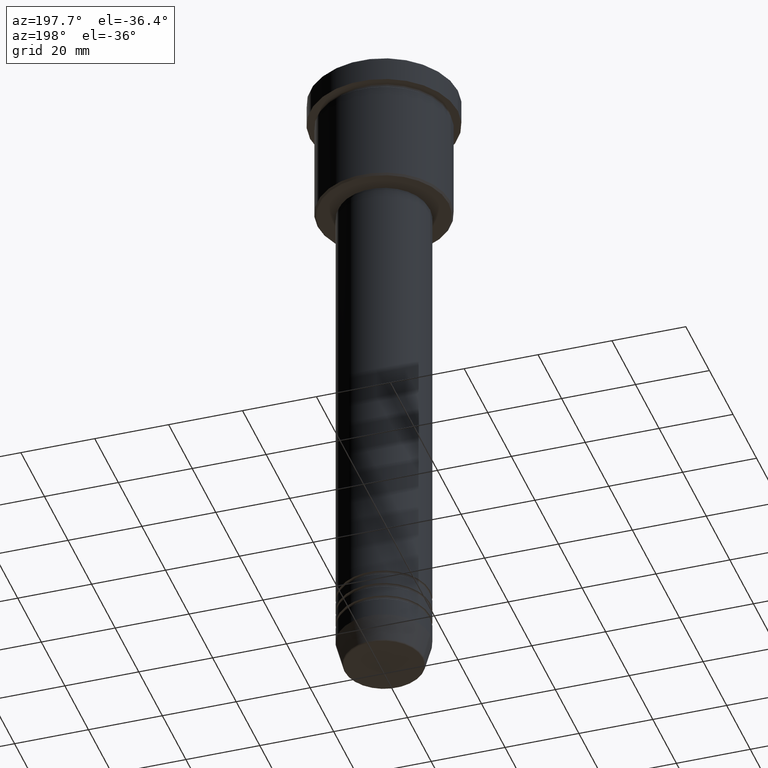
[diagram: clean part render]
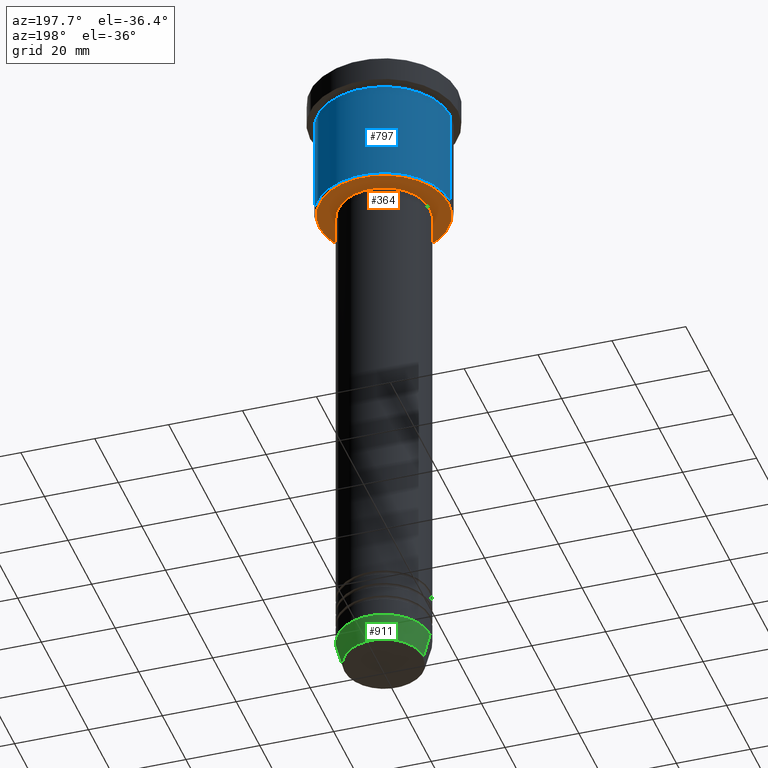
[diagram: same view with three faces highlighted in distinct colors, each labeled with its STEP entity id]
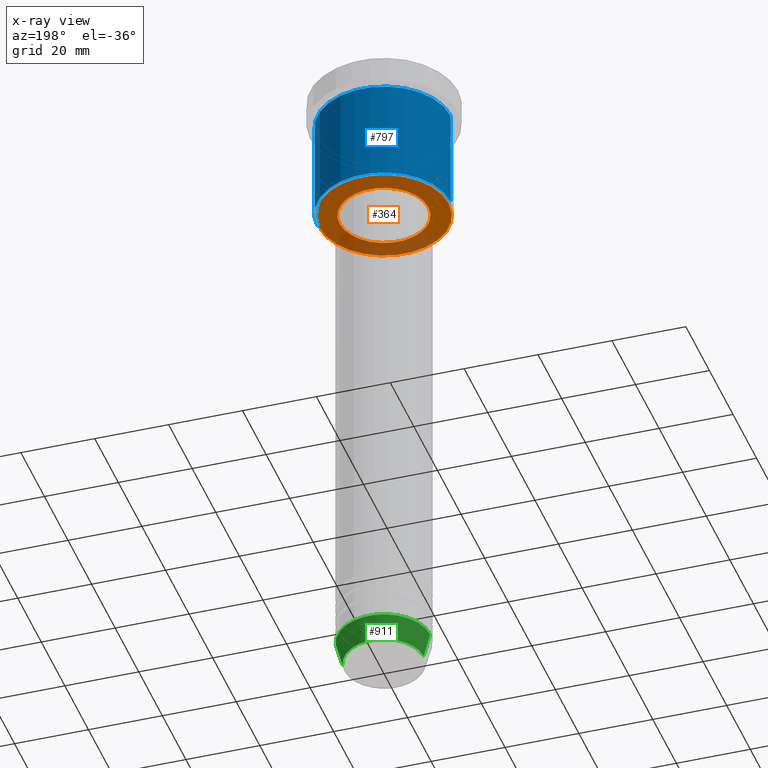
[diagram: x-ray of the same camera — body ghosted, the three highlighted faces saturated]
A machine part, auxiliary view with three faces highlighted in distinct colors.
The next image is the same camera in x-ray (body ghosted, the three faces saturated) — at least one of them is partly hidden behind the body in this view.
Their STEP definitions:

[orange] entity #364 — the highlighted planar face has unit normal (0, 0, -1).
#44 = VERTEX_POINT ( 'NONE', #384 ) ;
#50 = DIRECTION ( 'NONE',  ( -1.000000000000000000, 0.000000000000000000, 0.000000000000000000 ) ) ;
#71 = VERTEX_POINT ( 'NONE', #151 ) ;
#107 = AXIS2_PLACEMENT_3D ( 'NONE', #136, #1154, #775 ) ;
#119 = EDGE_CURVE ( 'NONE', #467, #71, #770, .T. ) ;
#136 = CARTESIAN_POINT ( 'NONE',  ( 0.000000000000000000, 18.00000000000000000, -36.00000000000000711 ) ) ;
#140 = DIRECTION ( 'NONE',  ( -0.000000000000000000, -0.000000000000000000, 1.000000000000000000 ) ) ;
#151 = CARTESIAN_POINT ( 'NONE',  ( 17.50000000000001421, 0.000000000000000000, -36.00000000000000711 ) ) ;
#215 = DIRECTION ( 'NONE',  ( 0.000000000000000000, 0.000000000000000000, -1.000000000000000000 ) ) ;
#227 = FACE_OUTER_BOUND ( 'NONE', #429, .T. ) ;
#238 = CARTESIAN_POINT ( 'NONE',  ( 0.000000000000000000, 0.000000000000000000, -36.00000000000001421 ) ) ;
#241 = AXIS2_PLACEMENT_3D ( 'NONE', #248, #420, #50 ) ;
#248 = CARTESIAN_POINT ( 'NONE',  ( 0.000000000000000000, 0.000000000000000000, -36.00000000000000711 ) ) ;
#249 = EDGE_LOOP ( 'NONE', ( #528, #778 ) ) ;
#291 = ORIENTED_EDGE ( 'NONE', *, *, #119, .T. ) ;
#309 = EDGE_CURVE ( 'NONE', #44, #716, #671, .T. ) ;
#331 = PLANE ( 'NONE',  #107 ) ;
#364 = ADVANCED_FACE ( 'NONE', ( #227, #881 ), #331, .T. ) ;
#384 = CARTESIAN_POINT ( 'NONE',  ( -12.00000000000000000, 1.469576158976823947E-15, -36.00000000000001421 ) ) ;
#400 = EDGE_CURVE ( 'NONE', #716, #44, #458, .T. ) ;
#406 = DIRECTION ( 'NONE',  ( -1.000000000000000000, 0.000000000000000000, 0.000000000000000000 ) ) ;
#420 = DIRECTION ( 'NONE',  ( 0.000000000000000000, 0.000000000000000000, -1.000000000000000000 ) ) ;
#429 = EDGE_LOOP ( 'NONE', ( #535, #291 ) ) ;
#458 = CIRCLE ( 'NONE', #731, 12.00000000000000000 ) ;
#467 = VERTEX_POINT ( 'NONE', #893 ) ;
#528 = ORIENTED_EDGE ( 'NONE', *, *, #400, .T. ) ;
#535 = ORIENTED_EDGE ( 'NONE', *, *, #1133, .T. ) ;
#611 = DIRECTION ( 'NONE',  ( 1.000000000000000000, 0.000000000000000000, 0.000000000000000000 ) ) ;
#616 = DIRECTION ( 'NONE',  ( -0.000000000000000000, -0.000000000000000000, 1.000000000000000000 ) ) ;
#655 = AXIS2_PLACEMENT_3D ( 'NONE', #779, #616, #885 ) ;
#671 = CIRCLE ( 'NONE', #655, 12.00000000000000000 ) ;
#716 = VERTEX_POINT ( 'NONE', #856 ) ;
#728 = CIRCLE ( 'NONE', #825, 17.50000000000001421 ) ;
#731 = AXIS2_PLACEMENT_3D ( 'NONE', #238, #140, #611 ) ;
#770 = CIRCLE ( 'NONE', #241, 17.50000000000001421 ) ;
#775 = DIRECTION ( 'NONE',  ( -1.000000000000000000, 0.000000000000000000, -0.000000000000000000 ) ) ;
#778 = ORIENTED_EDGE ( 'NONE', *, *, #309, .T. ) ;
#779 = CARTESIAN_POINT ( 'NONE',  ( 0.000000000000000000, 0.000000000000000000, -36.00000000000001421 ) ) ;
#825 = AXIS2_PLACEMENT_3D ( 'NONE', #1146, #215, #406 ) ;
#856 = CARTESIAN_POINT ( 'NONE',  ( 12.00000000000000000, 0.000000000000000000, -36.00000000000001421 ) ) ;
#881 = FACE_BOUND ( 'NONE', #249, .T. ) ;
#885 = DIRECTION ( 'NONE',  ( 1.000000000000000000, 0.000000000000000000, 0.000000000000000000 ) ) ;
#893 = CARTESIAN_POINT ( 'NONE',  ( -17.50000000000001421, 2.173748068486552430E-15, -36.00000000000000711 ) ) ;
#1133 = EDGE_CURVE ( 'NONE', #71, #467, #728, .T. ) ;
#1146 = CARTESIAN_POINT ( 'NONE',  ( 0.000000000000000000, 0.000000000000000000, -36.00000000000000711 ) ) ;
#1154 = DIRECTION ( 'NONE',  ( 0.000000000000000000, 0.000000000000000000, -1.000000000000000000 ) ) ;

[blue] entity #797 — the highlighted cylindrical surface (partial cylindrical patch) has radius 18 mm, axis along (-0, -0, 1).
#8 = DIRECTION ( 'NONE',  ( -0.000000000000000000, -0.000000000000000000, 1.000000000000000000 ) ) ;
#111 = CARTESIAN_POINT ( 'NONE',  ( 0.000000000000000000, 0.000000000000000000, -35.50000000000000711 ) ) ;
#163 = ORIENTED_EDGE ( 'NONE', *, *, #654, .T. ) ;
#207 = CARTESIAN_POINT ( 'NONE',  ( 0.000000000000000000, 0.000000000000000000, -7.999999999999996447 ) ) ;
#242 = VECTOR ( 'NONE', #8, 1000.000000000000000 ) ;
#265 = CIRCLE ( 'NONE', #485, 18.00000000000000000 ) ;
#321 = DIRECTION ( 'NONE',  ( -0.000000000000000000, -0.000000000000000000, 1.000000000000000000 ) ) ;
#322 = AXIS2_PLACEMENT_3D ( 'NONE', #874, #612, #785 ) ;
#370 = DIRECTION ( 'NONE',  ( -1.000000000000000000, 0.000000000000000000, 0.000000000000000000 ) ) ;
#423 = EDGE_CURVE ( 'NONE', #819, #683, #633, .T. ) ;
#471 = DIRECTION ( 'NONE',  ( -0.000000000000000000, -0.000000000000000000, 1.000000000000000000 ) ) ;
#478 = CARTESIAN_POINT ( 'NONE',  ( 18.00000000000000000, 0.000000000000000000, -7.999999999999996447 ) ) ;
#485 = AXIS2_PLACEMENT_3D ( 'NONE', #207, #321, #676 ) ;
#498 = ORIENTED_EDGE ( 'NONE', *, *, #1001, .T. ) ;
#575 = EDGE_LOOP ( 'NONE', ( #498, #163, #1083, #809 ) ) ;
#601 = CARTESIAN_POINT ( 'NONE',  ( -18.00000000000000000, 2.204364238465235428E-15, -7.999999999999996447 ) ) ;
#612 = DIRECTION ( 'NONE',  ( -0.000000000000000000, -0.000000000000000000, 1.000000000000000000 ) ) ;
#633 = LINE ( 'NONE', #909, #242 ) ;
#654 = EDGE_CURVE ( 'NONE', #826, #816, #1110, .T. ) ;
#676 = DIRECTION ( 'NONE',  ( 1.000000000000000000, 0.000000000000000000, 0.000000000000000000 ) ) ;
#683 = VERTEX_POINT ( 'NONE', #478 ) ;
#699 = CARTESIAN_POINT ( 'NONE',  ( -18.00000000000000000, 2.204364238465235428E-15, -35.50000000000000711 ) ) ;
#727 = EDGE_CURVE ( 'NONE', #683, #816, #265, .T. ) ;
#785 = DIRECTION ( 'NONE',  ( 1.000000000000000000, 0.000000000000000000, 0.000000000000000000 ) ) ;
#797 = ADVANCED_FACE ( 'NONE', ( #805 ), #1073, .T. ) ;
#805 = FACE_OUTER_BOUND ( 'NONE', #575, .T. ) ;
#809 = ORIENTED_EDGE ( 'NONE', *, *, #423, .F. ) ;
#812 = VECTOR ( 'NONE', #471, 1000.000000000000000 ) ;
#816 = VERTEX_POINT ( 'NONE', #601 ) ;
#819 = VERTEX_POINT ( 'NONE', #888 ) ;
#826 = VERTEX_POINT ( 'NONE', #699 ) ;
#874 = CARTESIAN_POINT ( 'NONE',  ( 0.000000000000000000, 0.000000000000000000, 0.000000000000000000 ) ) ;
#888 = CARTESIAN_POINT ( 'NONE',  ( 18.00000000000000000, 0.000000000000000000, -35.50000000000000711 ) ) ;
#909 = CARTESIAN_POINT ( 'NONE',  ( 18.00000000000000000, 0.000000000000000000, 0.000000000000000000 ) ) ;
#918 = AXIS2_PLACEMENT_3D ( 'NONE', #111, #1103, #370 ) ;
#1001 = EDGE_CURVE ( 'NONE', #819, #826, #1078, .T. ) ;
#1014 = CARTESIAN_POINT ( 'NONE',  ( -18.00000000000000000, 2.204364238465235428E-15, 0.000000000000000000 ) ) ;
#1073 = CYLINDRICAL_SURFACE ( 'NONE', #322, 18.00000000000000000 ) ;
#1078 = CIRCLE ( 'NONE', #918, 18.00000000000000000 ) ;
#1083 = ORIENTED_EDGE ( 'NONE', *, *, #727, .F. ) ;
#1103 = DIRECTION ( 'NONE',  ( -0.000000000000000000, -0.000000000000000000, 1.000000000000000000 ) ) ;
#1110 = LINE ( 'NONE', #1014, #812 ) ;

[green] entity #911 — the highlighted conical surface has half-angle 15 deg.
#1 = CONICAL_SURFACE ( 'NONE', #659, 12.50000000000000000, 0.2617993877991500740 ) ;
#6 = CARTESIAN_POINT ( 'NONE',  ( 0.000000000000000000, 0.000000000000000000, -179.6294095225512706 ) ) ;
#53 = CARTESIAN_POINT ( 'NONE',  ( 0.000000000000000000, 0.000000000000000000, -173.0000000000000284 ) ) ;
#69 = EDGE_CURVE ( 'NONE', #337, #847, #1161, .T. ) ;
#112 = ORIENTED_EDGE ( 'NONE', *, *, #69, .F. ) ;
#159 = CIRCLE ( 'NONE', #1059, 10.72365507213719127 ) ;
#172 = LINE ( 'NONE', #897, #1109 ) ;
#230 = CARTESIAN_POINT ( 'NONE',  ( 12.50000000000000000, 0.000000000000000000, -173.0000000000000284 ) ) ;
#297 = DIRECTION ( 'NONE',  ( -0.000000000000000000, -0.000000000000000000, 1.000000000000000000 ) ) ;
#305 = VERTEX_POINT ( 'NONE', #674 ) ;
#324 = DIRECTION ( 'NONE',  ( 1.000000000000000000, 0.000000000000000000, 0.000000000000000000 ) ) ;
#337 = VERTEX_POINT ( 'NONE', #1057 ) ;
#460 = CIRCLE ( 'NONE', #554, 12.50000000000000000 ) ;
#461 = ORIENTED_EDGE ( 'NONE', *, *, #688, .F. ) ;
#508 = FACE_OUTER_BOUND ( 'NONE', #1056, .T. ) ;
#533 = EDGE_CURVE ( 'NONE', #305, #858, #172, .T. ) ;
#552 = VECTOR ( 'NONE', #681, 1000.000000000000000 ) ;
#554 = AXIS2_PLACEMENT_3D ( 'NONE', #1095, #997, #831 ) ;
#656 = DIRECTION ( 'NONE',  ( 1.000000000000000000, 0.000000000000000000, 0.000000000000000000 ) ) ;
#659 = AXIS2_PLACEMENT_3D ( 'NONE', #53, #936, #324 ) ;
#663 = ORIENTED_EDGE ( 'NONE', *, *, #1089, .T. ) ;
#674 = CARTESIAN_POINT ( 'NONE',  ( -10.72365507213719127, 1.422038742429750516E-15, -179.6294095225512706 ) ) ;
#681 = DIRECTION ( 'NONE',  ( 0.2588190451025213501, 0.000000000000000000, 0.9659258262890680902 ) ) ;
#688 = EDGE_CURVE ( 'NONE', #847, #858, #460, .T. ) ;
#723 = ORIENTED_EDGE ( 'NONE', *, *, #533, .T. ) ;
#810 = DIRECTION ( 'NONE',  ( -0.2588190451025213501, 3.169619151431772337E-17, 0.9659258262890680902 ) ) ;
#831 = DIRECTION ( 'NONE',  ( 1.000000000000000000, 0.000000000000000000, 0.000000000000000000 ) ) ;
#847 = VERTEX_POINT ( 'NONE', #849 ) ;
#849 = CARTESIAN_POINT ( 'NONE',  ( 12.50000000000000000, 0.000000000000000000, -173.0000000000000284 ) ) ;
#858 = VERTEX_POINT ( 'NONE', #1023 ) ;
#897 = CARTESIAN_POINT ( 'NONE',  ( -12.50000000000000000, 1.530808498934191521E-15, -173.0000000000000284 ) ) ;
#911 = ADVANCED_FACE ( 'NONE', ( #508 ), #1, .T. ) ;
#936 = DIRECTION ( 'NONE',  ( -0.000000000000000000, -0.000000000000000000, 1.000000000000000000 ) ) ;
#997 = DIRECTION ( 'NONE',  ( -0.000000000000000000, -0.000000000000000000, 1.000000000000000000 ) ) ;
#1023 = CARTESIAN_POINT ( 'NONE',  ( -12.50000000000000000, 1.530808498934191521E-15, -173.0000000000000284 ) ) ;
#1056 = EDGE_LOOP ( 'NONE', ( #663, #723, #461, #112 ) ) ;
#1057 = CARTESIAN_POINT ( 'NONE',  ( 10.72365507213719127, 0.000000000000000000, -179.6294095225512706 ) ) ;
#1059 = AXIS2_PLACEMENT_3D ( 'NONE', #6, #297, #656 ) ;
#1089 = EDGE_CURVE ( 'NONE', #337, #305, #159, .T. ) ;
#1095 = CARTESIAN_POINT ( 'NONE',  ( 0.000000000000000000, 0.000000000000000000, -173.0000000000000284 ) ) ;
#1109 = VECTOR ( 'NONE', #810, 1000.000000000000000 ) ;
#1161 = LINE ( 'NONE', #230, #552 ) ;